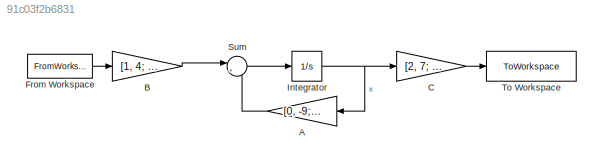
MODEL slx_91c03f2b6831
KIND model
CONFIG AbsTol = auto
CONFIG EnableMultiTasking = off
CONFIG FixedStep = 0.01
CONFIG MaxStep = auto
CONFIG MinStep = auto
CONFIG RelTol = 1e-3
CONFIG SampleTimeConstraint = Unconstrained
CONFIG SolverName = ode4
CONFIG StartTime = 0.0
CONFIG StopTime = 10.0
BLOCK [Gain] A
  Gain = [0, -9; 1, -6]
  Multiplication = Matrix(K*u) (u vector)
BLOCK [Gain] B
  Gain = [1, 4; 3, 5]
  Multiplication = Matrix(K*u) (u vector)
  NameLocation = top
BLOCK [Gain] C
  Gain = [2, 7; 4, 6]
  Multiplication = Matrix(K*u) (u vector)
  NameLocation = top
BLOCK [FromWorkspace] From Workspace
  VariableName = u
BLOCK [Integrator] Integrator
BLOCK [Sum] Sum
  Inputs = |++
BLOCK [ToWorkspace] To Workspace
  FixptAsFi = on
  MaxDataPoints = inf
  SampleTime = -1
  SaveFormat = Timeseries
  VariableName = y
LINE A:1 -> Sum:2
LINE B:1 -> Sum:1
LINE C:1 -> To Workspace:1
LINE From Workspace:1 -> B:1
NET Integrator:1 -> A:1, C:1
LINE Sum:1 -> Integrator:1
note: NET lines group one-source signal fan-out (src -> all destinations, sorted); 1:1 wires keep LINE
